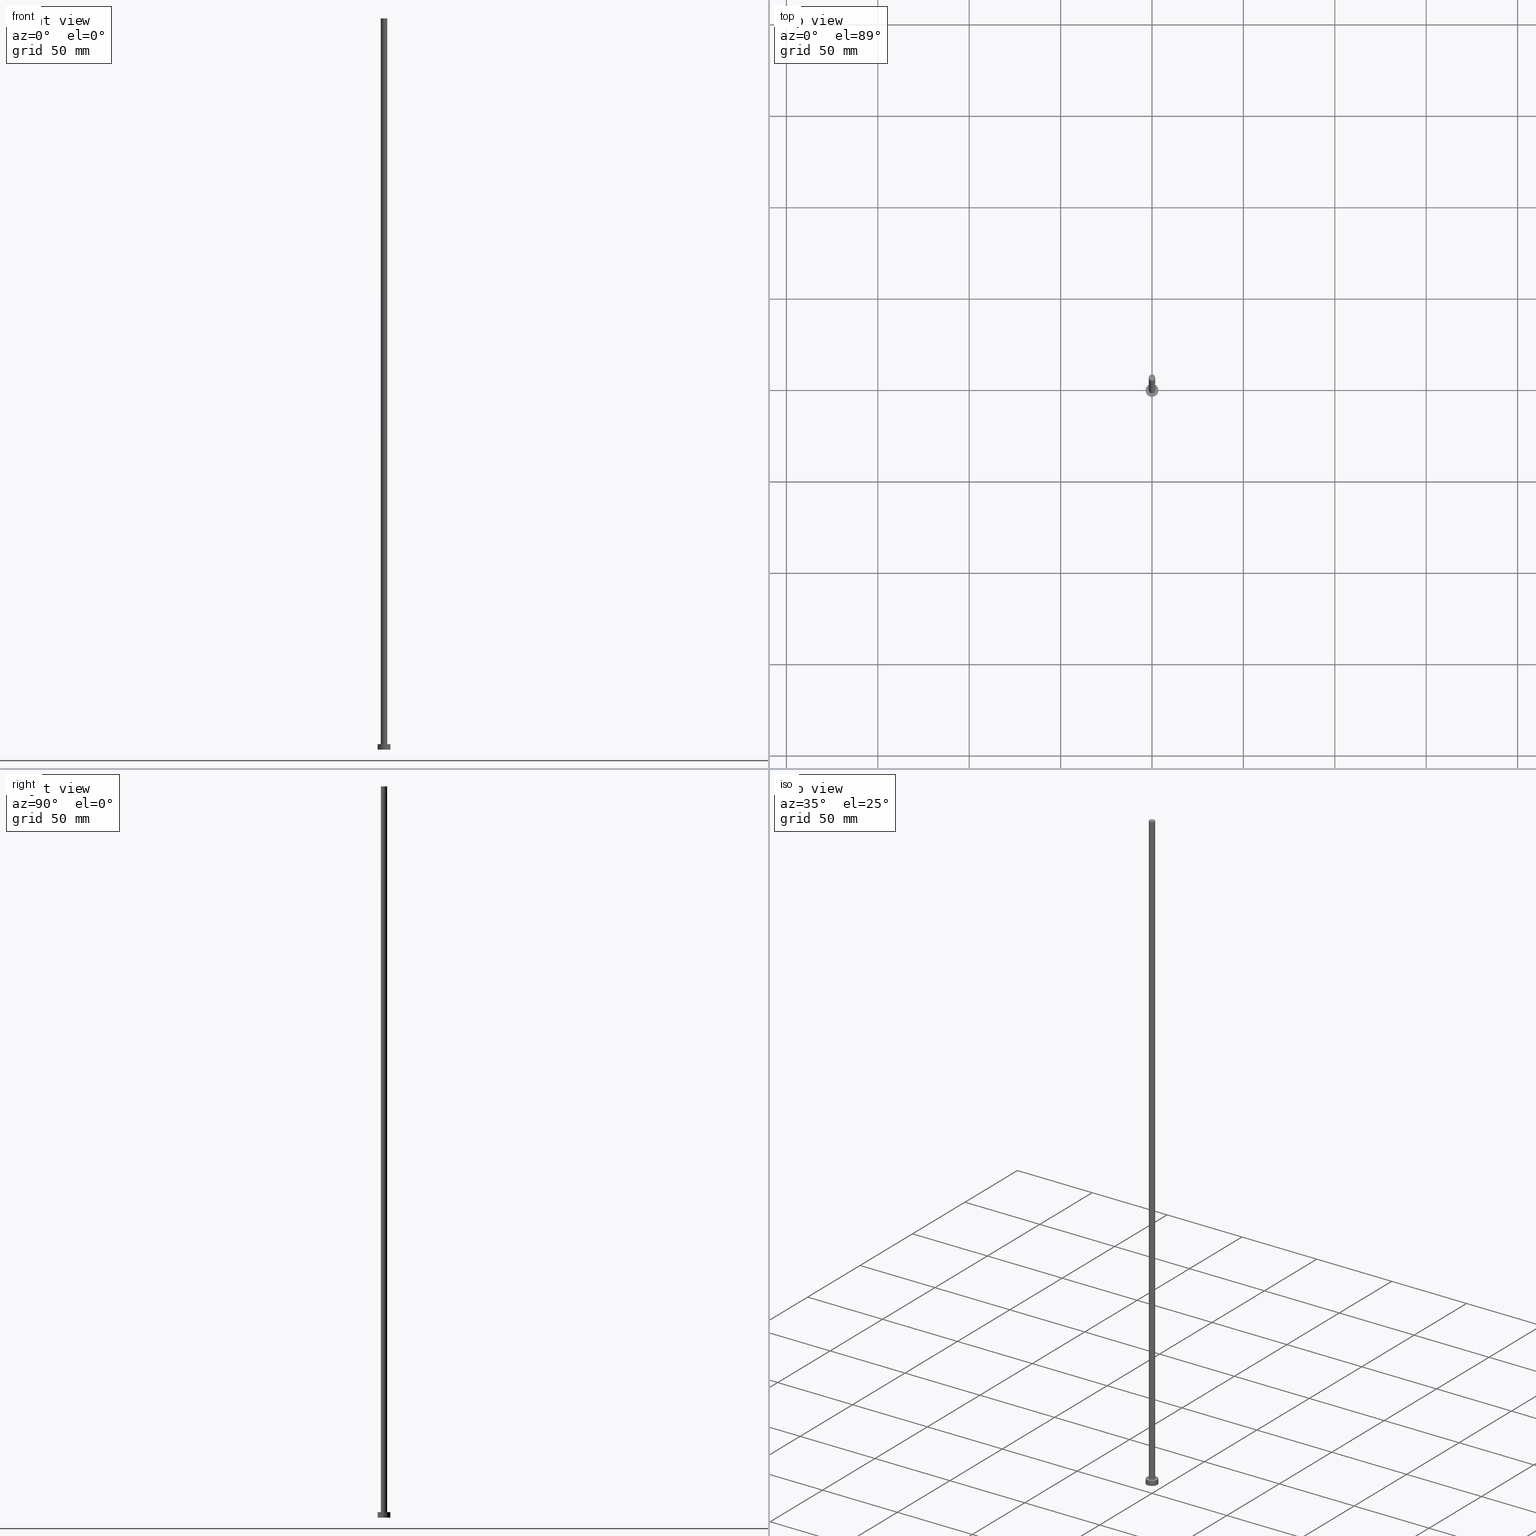
[diagram: canonical four-view strip — front | top / right | iso, engineering-drawing reading convention]
A machine part, canonical four-view strip (front | top / right | iso — engineering-drawing reading convention). The complete STEP part file that produces these views, byte-faithful:
ISO-10303-21;
HEADER;
FILE_DESCRIPTION (( 'STEP AP203' ),
    '1' );
FILE_NAME ('bb00.STEP',
    '2023-02-12T12:41:47',
    ( '' ),
    ( '' ),
    'SwSTEP 2.0',
    'SolidWorks 2019',
    '' );
FILE_SCHEMA (( 'CONFIG_CONTROL_DESIGN' ));
ENDSEC;

DATA;
#1 = PERSON ( 'NEUR�EN�', 'NEUR�EN�', 'NEUR�EN�', ('NEUR�EN�'), ('NEUR�EN�'), ('NEUR�EN�') ) ;
#2 = CARTESIAN_POINT ( 'NONE',  ( 0.000000000000000000, 0.000000000000000000, 0.000000000000000000 ) ) ;
#3 = CARTESIAN_POINT ( 'NONE',  ( 0.000000000000000000, 0.000000000000000000, 3.000000000000000000 ) ) ;
#4 = EDGE_CURVE ( 'NONE', #52, #152, #181, .T. ) ;
#5 = DIRECTION ( 'NONE',  ( 1.000000000000000000, 0.000000000000000000, -0.000000000000000000 ) ) ;
#6 = CIRCLE ( 'NONE', #11, 3.500000000000000444 ) ;
#7 = DIRECTION ( 'NONE',  ( 1.000000000000000000, 0.000000000000000000, 0.000000000000000000 ) ) ;
#8 = DIRECTION ( 'NONE',  ( -0.000000000000000000, -0.000000000000000000, -1.000000000000000000 ) ) ;
#9 = FACE_BOUND ( 'NONE', #175, .T. ) ;
#10 = DATE_AND_TIME ( #73, #103 ) ;
#11 = AXIS2_PLACEMENT_3D ( 'NONE', #201, #219, #22 ) ;
#12 = ORIENTED_EDGE ( 'NONE', *, *, #179, .T. ) ;
#13 = EDGE_CURVE ( 'NONE', #152, #72, #57, .T. ) ;
#14 = APPROVAL_ROLE ( '' ) ;
#15 = VERTEX_POINT ( 'NONE', #118 ) ;
#16 = EDGE_CURVE ( 'NONE', #174, #72, #117, .T. ) ;
#17 = CIRCLE ( 'NONE', #176, 3.500000000000000444 ) ;
#18 = VECTOR ( 'NONE', #121, 1000.000000000000000 ) ;
#19 = CYLINDRICAL_SURFACE ( 'NONE', #46, 3.500000000000000444 ) ;
#20 = DIRECTION ( 'NONE',  ( 1.000000000000000000, 0.000000000000000000, -0.000000000000000000 ) ) ;
#21 = DIRECTION ( 'NONE',  ( -0.000000000000000000, -0.000000000000000000, -1.000000000000000000 ) ) ;
#22 = DIRECTION ( 'NONE',  ( 1.000000000000000000, 0.000000000000000000, 0.000000000000000000 ) ) ;
#23 = CC_DESIGN_SECURITY_CLASSIFICATION ( #109, ( #154 ) ) ;
#24 = LINE ( 'NONE', #80, #82 ) ;
#25 = DIRECTION ( 'NONE',  ( -0.000000000000000000, -0.000000000000000000, -1.000000000000000000 ) ) ;
#26 = DIRECTION ( 'NONE',  ( -0.000000000000000000, -0.000000000000000000, -1.000000000000000000 ) ) ;
#27 = CARTESIAN_POINT ( 'NONE',  ( 0.000000000000000000, 0.000000000000000000, 0.000000000000000000 ) ) ;
#28 = AXIS2_PLACEMENT_3D ( 'NONE', #178, #55, #61 ) ;
#29 = PERSON_AND_ORGANIZATION ( #1, #195 ) ;
#30 = EDGE_CURVE ( 'NONE', #38, #211, #113, .T. ) ;
#31 = ORIENTED_EDGE ( 'NONE', *, *, #97, .F. ) ;
#32 = CALENDAR_DATE ( 2023, 12, 2 ) ;
#33 = DIRECTION ( 'NONE',  ( 0.000000000000000000, 0.000000000000000000, 1.000000000000000000 ) ) ;
#34 = CC_DESIGN_DATE_AND_TIME_ASSIGNMENT ( #10, #43, ( #109 ) ) ;
#35 = CARTESIAN_POINT ( 'NONE',  ( -3.500000000000000444, 0.000000000000000000, 0.000000000000000000 ) ) ;
#36 = AXIS2_PLACEMENT_3D ( 'NONE', #142, #45, #42 ) ;
#37 = CC_DESIGN_PERSON_AND_ORGANIZATION_ASSIGNMENT ( #189, #193, ( #154 ) ) ;
#38 = VERTEX_POINT ( 'NONE', #104 ) ;
#39 = DIRECTION ( 'NONE',  ( 0.000000000000000000, 0.000000000000000000, 1.000000000000000000 ) ) ;
#40 = CARTESIAN_POINT ( 'NONE',  ( 0.000000000000000000, 0.000000000000000000, 400.0000000000000000 ) ) ;
#41 = DIRECTION ( 'NONE',  ( -0.000000000000000000, -0.000000000000000000, -1.000000000000000000 ) ) ;
#42 = DIRECTION ( 'NONE',  ( 1.000000000000000000, 0.000000000000000000, 0.000000000000000000 ) ) ;
#43 = DATE_TIME_ROLE ( 'classification_date' ) ;
#44 = EDGE_CURVE ( 'NONE', #15, #194, #164, .T. ) ;
#45 = DIRECTION ( 'NONE',  ( 0.000000000000000000, 0.000000000000000000, 1.000000000000000000 ) ) ;
#46 = AXIS2_PLACEMENT_3D ( 'NONE', #203, #21, #122 ) ;
#47 = PERSON_AND_ORGANIZATION_ROLE ( 'design_owner' ) ;
#48 = PERSON_AND_ORGANIZATION_ROLE ( 'creator' ) ;
#49 = ORIENTED_EDGE ( 'NONE', *, *, #177, .F. ) ;
#50 = APPROVAL_ROLE ( '' ) ;
#51 = CIRCLE ( 'NONE', #96, 1.750000000000000000 ) ;
#52 = VERTEX_POINT ( 'NONE', #134 ) ;
#53 = ADVANCED_FACE ( 'NONE', ( #162 ), #100, .T. ) ;
#54 = APPROVAL_PERSON_ORGANIZATION ( #234, #254, #50 ) ;
#55 = DIRECTION ( 'NONE',  ( 0.000000000000000000, 0.000000000000000000, 1.000000000000000000 ) ) ;
#56 = CC_DESIGN_PERSON_AND_ORGANIZATION_ASSIGNMENT ( #190, #47, ( #184 ) ) ;
#57 = LINE ( 'NONE', #59, #98 ) ;
#58 = AXIS2_PLACEMENT_3D ( 'NONE', #2, #39, #5 ) ;
#59 = CARTESIAN_POINT ( 'NONE',  ( -3.500000000000000444, 0.000000000000000000, 3.000000000000000000 ) ) ;
#60 = DIRECTION ( 'NONE',  ( 1.000000000000000000, 0.000000000000000000, 0.000000000000000000 ) ) ;
#61 = DIRECTION ( 'NONE',  ( 1.000000000000000000, 0.000000000000000000, 0.000000000000000000 ) ) ;
#62 =( LENGTH_UNIT ( ) NAMED_UNIT ( * ) SI_UNIT ( .MILLI., .METRE. ) );
#63 = VECTOR ( 'NONE', #8, 1000.000000000000000 ) ;
#64 = CARTESIAN_POINT ( 'NONE',  ( 0.000000000000000000, 0.000000000000000000, 3.000000000000000000 ) ) ;
#65 = ADVANCED_BREP_SHAPE_REPRESENTATION ( 'bb00', ( #106, #198 ), #157 ) ;
#66 = CARTESIAN_POINT ( 'NONE',  ( 0.000000000000000000, 0.000000000000000000, 3.000000000000000000 ) ) ;
#67 = FACE_OUTER_BOUND ( 'NONE', #139, .T. ) ;
#68 = PERSON_AND_ORGANIZATION ( #1, #195 ) ;
#69 = LOCAL_TIME ( 13, 41, 47.00000000000000000, #210 ) ;
#70 = EDGE_LOOP ( 'NONE', ( #31, #95 ) ) ;
#71 =( NAMED_UNIT ( * ) SI_UNIT ( $, .STERADIAN. ) SOLID_ANGLE_UNIT ( ) );
#72 = VERTEX_POINT ( 'NONE', #35 ) ;
#73 = CALENDAR_DATE ( 2023, 12, 2 ) ;
#74 = ORIENTED_EDGE ( 'NONE', *, *, #131, .T. ) ;
#75 = AXIS2_PLACEMENT_3D ( 'NONE', #140, #159, #85 ) ;
#76 = PRODUCT_DEFINITION ( 'NEZN�M�', '', #154, #155 ) ;
#77 = APPROVAL_PERSON_ORGANIZATION ( #130, #202, #14 ) ;
#78 = ORIENTED_EDGE ( 'NONE', *, *, #30, .T. ) ;
#79 = APPLICATION_CONTEXT ( 'configuration controlled 3d designs of mechanical parts and assemblies' ) ;
#80 = CARTESIAN_POINT ( 'NONE',  ( 1.750000000000000000, 2.143131898507868297E-16, 400.0000000000000000 ) ) ;
#81 = DIRECTION ( 'NONE',  ( 0.000000000000000000, 0.000000000000000000, 1.000000000000000000 ) ) ;
#82 = VECTOR ( 'NONE', #135, 1000.000000000000000 ) ;
#83 = ORIENTED_EDGE ( 'NONE', *, *, #4, .T. ) ;
#84 = APPROVAL ( #248, 'NEUR�EN�' ) ;
#85 = DIRECTION ( 'NONE',  ( 1.000000000000000000, 0.000000000000000000, 0.000000000000000000 ) ) ;
#86 = DIRECTION ( 'NONE',  ( 0.000000000000000000, 0.000000000000000000, 1.000000000000000000 ) ) ;
#87 = CIRCLE ( 'NONE', #36, 1.750000000000000000 ) ;
#88 = DIRECTION ( 'NONE',  ( -1.000000000000000000, 0.000000000000000000, 0.000000000000000000 ) ) ;
#89 = COORDINATED_UNIVERSAL_TIME_OFFSET ( 1, 0, .AHEAD. ) ;
#90 = EDGE_CURVE ( 'NONE', #38, #15, #238, .T. ) ;
#91 = ORIENTED_EDGE ( 'NONE', *, *, #131, .F. ) ;
#92 = CALENDAR_DATE ( 2023, 12, 2 ) ;
#93 = EDGE_LOOP ( 'NONE', ( #191, #74, #148, #169 ) ) ;
#94 = PERSON_AND_ORGANIZATION_ROLE ( 'classification_officer' ) ;
#95 = ORIENTED_EDGE ( 'NONE', *, *, #16, .F. ) ;
#96 = AXIS2_PLACEMENT_3D ( 'NONE', #224, #86, #228 ) ;
#97 = EDGE_CURVE ( 'NONE', #72, #174, #6, .T. ) ;
#98 = VECTOR ( 'NONE', #101, 1000.000000000000000 ) ;
#99 = ORIENTED_EDGE ( 'NONE', *, *, #16, .T. ) ;
#100 = PLANE ( 'NONE',  #212 ) ;
#101 = DIRECTION ( 'NONE',  ( -0.000000000000000000, -0.000000000000000000, -1.000000000000000000 ) ) ;
#102 = ADVANCED_FACE ( 'NONE', ( #182 ), #138, .F. ) ;
#103 = LOCAL_TIME ( 13, 41, 47.00000000000000000, #173 ) ;
#104 = CARTESIAN_POINT ( 'NONE',  ( -1.750000000000000000, 0.000000000000000000, 400.0000000000000000 ) ) ;
#105 = ORIENTED_EDGE ( 'NONE', *, *, #4, .F. ) ;
#106 = MANIFOLD_SOLID_BREP ( 'P�idat vysunut�m3', #192 ) ;
#107 = ADVANCED_FACE ( 'NONE', ( #223 ), #242, .T. ) ;
#108 = DIRECTION ( 'NONE',  ( 1.000000000000000000, 0.000000000000000000, -0.000000000000000000 ) ) ;
#109 = SECURITY_CLASSIFICATION ( '', '', #168 ) ;
#110 = CARTESIAN_POINT ( 'NONE',  ( 3.500000000000000444, 4.286263797015737088E-16, 3.000000000000000000 ) ) ;
#111 = CALENDAR_DATE ( 2023, 12, 2 ) ;
#112 = MECHANICAL_CONTEXT ( 'NONE', #79, 'mechanical' ) ;
#113 = CIRCLE ( 'NONE', #208, 1.750000000000000000 ) ;
#114 = APPROVAL_DATE_TIME ( #188, #202 ) ;
#115 = EDGE_LOOP ( 'NONE', ( #78, #12 ) ) ;
#116 = DIRECTION ( 'NONE',  ( 0.000000000000000000, 0.000000000000000000, 1.000000000000000000 ) ) ;
#117 = CIRCLE ( 'NONE', #75, 3.500000000000000444 ) ;
#118 = CARTESIAN_POINT ( 'NONE',  ( -1.750000000000000000, 0.000000000000000000, 3.000000000000000000 ) ) ;
#119 = DIRECTION ( 'NONE',  ( -1.000000000000000000, 0.000000000000000000, 0.000000000000000000 ) ) ;
#120 = ADVANCED_FACE ( 'NONE', ( #200 ), #19, .T. ) ;
#121 = DIRECTION ( 'NONE',  ( -0.000000000000000000, -0.000000000000000000, -1.000000000000000000 ) ) ;
#122 = DIRECTION ( 'NONE',  ( -1.000000000000000000, 0.000000000000000000, 0.000000000000000000 ) ) ;
#123 = CARTESIAN_POINT ( 'NONE',  ( 3.500000000000000444, 4.286263797015737088E-16, 0.000000000000000000 ) ) ;
#124 = CALENDAR_DATE ( 2023, 12, 2 ) ;
#125 =( NAMED_UNIT ( * ) PLANE_ANGLE_UNIT ( ) SI_UNIT ( $, .RADIAN. ) );
#126 = EDGE_LOOP ( 'NONE', ( #49, #199, #196, #156 ) ) ;
#127 = PERSON_AND_ORGANIZATION_ROLE ( 'creator' ) ;
#128 = CC_DESIGN_DATE_AND_TIME_ASSIGNMENT ( #151, #170, ( #76 ) ) ;
#129 = APPROVAL_STATUS ( 'not_yet_approved' ) ;
#130 = PERSON_AND_ORGANIZATION ( #1, #195 ) ;
#131 = EDGE_CURVE ( 'NONE', #211, #194, #24, .T. ) ;
#132 = CC_DESIGN_APPROVAL ( #254, ( #109 ) ) ;
#133 = ORIENTED_EDGE ( 'NONE', *, *, #44, .T. ) ;
#134 = CARTESIAN_POINT ( 'NONE',  ( 3.500000000000000444, 4.286263797015737088E-16, 3.000000000000000000 ) ) ;
#135 = DIRECTION ( 'NONE',  ( -0.000000000000000000, -0.000000000000000000, -1.000000000000000000 ) ) ;
#136 = APPROVAL_PERSON_ORGANIZATION ( #167, #84, #232 ) ;
#137 = EDGE_CURVE ( 'NONE', #152, #52, #17, .T. ) ;
#138 = PLANE ( 'NONE',  #58 ) ;
#139 = EDGE_LOOP ( 'NONE', ( #91, #239, #235, #133 ) ) ;
#140 = CARTESIAN_POINT ( 'NONE',  ( 0.000000000000000000, 0.000000000000000000, 0.000000000000000000 ) ) ;
#141 = AXIS2_PLACEMENT_3D ( 'NONE', #243, #25, #88 ) ;
#142 = CARTESIAN_POINT ( 'NONE',  ( 0.000000000000000000, 0.000000000000000000, 3.000000000000000000 ) ) ;
#143 = CARTESIAN_POINT ( 'NONE',  ( 1.750000000000000000, 2.143131898507868297E-16, 3.000000000000000000 ) ) ;
#144 = APPLICATION_PROTOCOL_DEFINITION ( 'international standard', 'config_control_design', 1994, #150 ) ;
#145 = PLANE ( 'NONE',  #236 ) ;
#146 = COORDINATED_UNIVERSAL_TIME_OFFSET ( 1, 0, .AHEAD. ) ;
#147 = LOCAL_TIME ( 13, 41, 47.00000000000000000, #227 ) ;
#148 = ORIENTED_EDGE ( 'NONE', *, *, #214, .T. ) ;
#149 = APPLICATION_PROTOCOL_DEFINITION ( 'international standard', 'config_control_design', 1994, #79 ) ;
#150 = APPLICATION_CONTEXT ( 'configuration controlled 3d designs of mechanical parts and assemblies' ) ;
#151 = DATE_AND_TIME ( #111, #147 ) ;
#152 = VERTEX_POINT ( 'NONE', #163 ) ;
#153 = CC_DESIGN_PERSON_AND_ORGANIZATION_ASSIGNMENT ( #252, #94, ( #109 ) ) ;
#154 = PRODUCT_DEFINITION_FORMATION_WITH_SPECIFIED_SOURCE ( 'LIBOVOLN�', '', #184, .NOT_KNOWN. ) ;
#155 = DESIGN_CONTEXT ( 'detailed design', #150, 'design' ) ;
#156 = ORIENTED_EDGE ( 'NONE', *, *, #97, .T. ) ;
#157 =( GEOMETRIC_REPRESENTATION_CONTEXT ( 3 ) GLOBAL_UNCERTAINTY_ASSIGNED_CONTEXT ( ( #216 ) ) GLOBAL_UNIT_ASSIGNED_CONTEXT ( ( #62, #125, #71 ) ) REPRESENTATION_CONTEXT ( 'NONE', 'WORKASPACE' ) );
#158 = ORIENTED_EDGE ( 'NONE', *, *, #177, .T. ) ;
#159 = DIRECTION ( 'NONE',  ( 0.000000000000000000, 0.000000000000000000, 1.000000000000000000 ) ) ;
#160 = DIRECTION ( 'NONE',  ( 1.000000000000000000, 0.000000000000000000, 0.000000000000000000 ) ) ;
#161 = ORIENTED_EDGE ( 'NONE', *, *, #44, .F. ) ;
#162 = FACE_OUTER_BOUND ( 'NONE', #115, .T. ) ;
#163 = CARTESIAN_POINT ( 'NONE',  ( -3.500000000000000444, 0.000000000000000000, 3.000000000000000000 ) ) ;
#164 = CIRCLE ( 'NONE', #28, 1.750000000000000000 ) ;
#165 = DATE_AND_TIME ( #124, #249 ) ;
#166 = LINE ( 'NONE', #110, #63 ) ;
#167 = PERSON_AND_ORGANIZATION ( #1, #195 ) ;
#168 = SECURITY_CLASSIFICATION_LEVEL ( 'unclassified' ) ;
#169 = ORIENTED_EDGE ( 'NONE', *, *, #90, .F. ) ;
#170 = DATE_TIME_ROLE ( 'creation_date' ) ;
#171 = EDGE_LOOP ( 'NONE', ( #253, #83 ) ) ;
#172 = ADVANCED_FACE ( 'NONE', ( #9, #204 ), #145, .T. ) ;
#173 = COORDINATED_UNIVERSAL_TIME_OFFSET ( 1, 0, .AHEAD. ) ;
#174 = VERTEX_POINT ( 'NONE', #123 ) ;
#175 = EDGE_LOOP ( 'NONE', ( #161, #230 ) ) ;
#176 = AXIS2_PLACEMENT_3D ( 'NONE', #3, #81, #160 ) ;
#177 = EDGE_CURVE ( 'NONE', #52, #174, #166, .T. ) ;
#178 = CARTESIAN_POINT ( 'NONE',  ( 0.000000000000000000, 0.000000000000000000, 3.000000000000000000 ) ) ;
#179 = EDGE_CURVE ( 'NONE', #211, #38, #51, .T. ) ;
#180 = CARTESIAN_POINT ( 'NONE',  ( 0.000000000000000000, 0.000000000000000000, 400.0000000000000000 ) ) ;
#181 = CIRCLE ( 'NONE', #255, 3.500000000000000444 ) ;
#182 = FACE_OUTER_BOUND ( 'NONE', #70, .T. ) ;
#183 = DIRECTION ( 'NONE',  ( 0.000000000000000000, 0.000000000000000000, 1.000000000000000000 ) ) ;
#184 = PRODUCT ( 'bb00', 'bb00', '', ( #112 ) ) ;
#185 = FACE_OUTER_BOUND ( 'NONE', #126, .T. ) ;
#186 = CC_DESIGN_APPROVAL ( #202, ( #76 ) ) ;
#187 = DIRECTION ( 'NONE',  ( -1.000000000000000000, 0.000000000000000000, 0.000000000000000000 ) ) ;
#188 = DATE_AND_TIME ( #92, #231 ) ;
#189 = PERSON_AND_ORGANIZATION ( #1, #195 ) ;
#190 = PERSON_AND_ORGANIZATION ( #1, #195 ) ;
#191 = ORIENTED_EDGE ( 'NONE', *, *, #179, .F. ) ;
#192 = CLOSED_SHELL ( 'NONE', ( #107, #120, #250, #172, #102, #205, #53 ) ) ;
#193 = PERSON_AND_ORGANIZATION_ROLE ( 'design_supplier' ) ;
#194 = VERTEX_POINT ( 'NONE', #143 ) ;
#195 = ORGANIZATION ( 'NEUR�EN�', 'NEUR�EN�', '' ) ;
#196 = ORIENTED_EDGE ( 'NONE', *, *, #13, .T. ) ;
#197 = CARTESIAN_POINT ( 'NONE',  ( -1.750000000000000000, 0.000000000000000000, 400.0000000000000000 ) ) ;
#198 = AXIS2_PLACEMENT_3D ( 'NONE', #27, #33, #209 ) ;
#199 = ORIENTED_EDGE ( 'NONE', *, *, #137, .F. ) ;
#200 = FACE_OUTER_BOUND ( 'NONE', #233, .T. ) ;
#201 = CARTESIAN_POINT ( 'NONE',  ( 0.000000000000000000, 0.000000000000000000, 0.000000000000000000 ) ) ;
#202 = APPROVAL ( #129, 'NEUR�EN�' ) ;
#203 = CARTESIAN_POINT ( 'NONE',  ( 0.000000000000000000, 0.000000000000000000, 3.000000000000000000 ) ) ;
#204 = FACE_OUTER_BOUND ( 'NONE', #171, .T. ) ;
#205 = ADVANCED_FACE ( 'NONE', ( #67 ), #226, .T. ) ;
#206 = CYLINDRICAL_SURFACE ( 'NONE', #220, 3.500000000000000444 ) ;
#207 = SHAPE_DEFINITION_REPRESENTATION ( #245, #65 ) ;
#208 = AXIS2_PLACEMENT_3D ( 'NONE', #221, #183, #7 ) ;
#209 = DIRECTION ( 'NONE',  ( 1.000000000000000000, 0.000000000000000000, 0.000000000000000000 ) ) ;
#210 = COORDINATED_UNIVERSAL_TIME_OFFSET ( 1, 0, .AHEAD. ) ;
#211 = VERTEX_POINT ( 'NONE', #247 ) ;
#212 = AXIS2_PLACEMENT_3D ( 'NONE', #40, #218, #20 ) ;
#213 = APPROVAL_STATUS ( 'not_yet_approved' ) ;
#214 = EDGE_CURVE ( 'NONE', #194, #15, #87, .T. ) ;
#215 = CC_DESIGN_APPROVAL ( #84, ( #154 ) ) ;
#216 = UNCERTAINTY_MEASURE_WITH_UNIT (LENGTH_MEASURE( 1.000000000000000082E-05 ), #62, 'distance_accuracy_value', 'NONE');
#217 = ORIENTED_EDGE ( 'NONE', *, *, #13, .F. ) ;
#218 = DIRECTION ( 'NONE',  ( 0.000000000000000000, 0.000000000000000000, 1.000000000000000000 ) ) ;
#219 = DIRECTION ( 'NONE',  ( 0.000000000000000000, 0.000000000000000000, 1.000000000000000000 ) ) ;
#220 = AXIS2_PLACEMENT_3D ( 'NONE', #64, #26, #187 ) ;
#221 = CARTESIAN_POINT ( 'NONE',  ( 0.000000000000000000, 0.000000000000000000, 400.0000000000000000 ) ) ;
#222 = CC_DESIGN_PERSON_AND_ORGANIZATION_ASSIGNMENT ( #29, #127, ( #76 ) ) ;
#223 = FACE_OUTER_BOUND ( 'NONE', #93, .T. ) ;
#224 = CARTESIAN_POINT ( 'NONE',  ( 0.000000000000000000, 0.000000000000000000, 400.0000000000000000 ) ) ;
#225 = CC_DESIGN_PERSON_AND_ORGANIZATION_ASSIGNMENT ( #68, #48, ( #154 ) ) ;
#226 = CYLINDRICAL_SURFACE ( 'NONE', #141, 1.750000000000000000 ) ;
#227 = COORDINATED_UNIVERSAL_TIME_OFFSET ( 1, 0, .AHEAD. ) ;
#228 = DIRECTION ( 'NONE',  ( 1.000000000000000000, 0.000000000000000000, 0.000000000000000000 ) ) ;
#229 = APPROVAL_DATE_TIME ( #251, #84 ) ;
#230 = ORIENTED_EDGE ( 'NONE', *, *, #214, .F. ) ;
#231 = LOCAL_TIME ( 13, 41, 47.00000000000000000, #146 ) ;
#232 = APPROVAL_ROLE ( '' ) ;
#233 = EDGE_LOOP ( 'NONE', ( #105, #158, #99, #217 ) ) ;
#234 = PERSON_AND_ORGANIZATION ( #1, #195 ) ;
#235 = ORIENTED_EDGE ( 'NONE', *, *, #90, .T. ) ;
#236 = AXIS2_PLACEMENT_3D ( 'NONE', #66, #244, #108 ) ;
#237 = CARTESIAN_POINT ( 'NONE',  ( 0.000000000000000000, 0.000000000000000000, 3.000000000000000000 ) ) ;
#238 = LINE ( 'NONE', #197, #18 ) ;
#239 = ORIENTED_EDGE ( 'NONE', *, *, #30, .F. ) ;
#240 = AXIS2_PLACEMENT_3D ( 'NONE', #180, #41, #119 ) ;
#241 = PRODUCT_RELATED_PRODUCT_CATEGORY ( 'detail', '', ( #184 ) ) ;
#242 = CYLINDRICAL_SURFACE ( 'NONE', #240, 1.750000000000000000 ) ;
#243 = CARTESIAN_POINT ( 'NONE',  ( 0.000000000000000000, 0.000000000000000000, 400.0000000000000000 ) ) ;
#244 = DIRECTION ( 'NONE',  ( 0.000000000000000000, 0.000000000000000000, 1.000000000000000000 ) ) ;
#245 = PRODUCT_DEFINITION_SHAPE ( 'NONE', 'NONE',  #76 ) ;
#246 = APPROVAL_DATE_TIME ( #165, #254 ) ;
#247 = CARTESIAN_POINT ( 'NONE',  ( 1.750000000000000000, 2.143131898507868297E-16, 400.0000000000000000 ) ) ;
#248 = APPROVAL_STATUS ( 'not_yet_approved' ) ;
#249 = LOCAL_TIME ( 13, 41, 47.00000000000000000, #89 ) ;
#250 = ADVANCED_FACE ( 'NONE', ( #185 ), #206, .T. ) ;
#251 = DATE_AND_TIME ( #32, #69 ) ;
#252 = PERSON_AND_ORGANIZATION ( #1, #195 ) ;
#253 = ORIENTED_EDGE ( 'NONE', *, *, #137, .T. ) ;
#254 = APPROVAL ( #213, 'NEUR�EN�' ) ;
#255 = AXIS2_PLACEMENT_3D ( 'NONE', #237, #116, #60 ) ;
ENDSEC;
END-ISO-10303-21;
